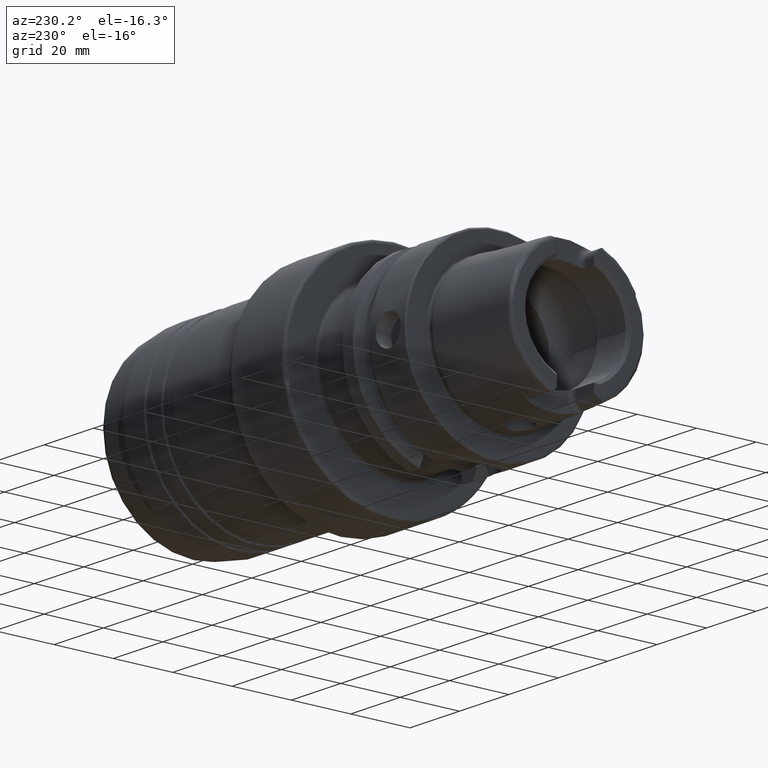
[diagram: clean part render]
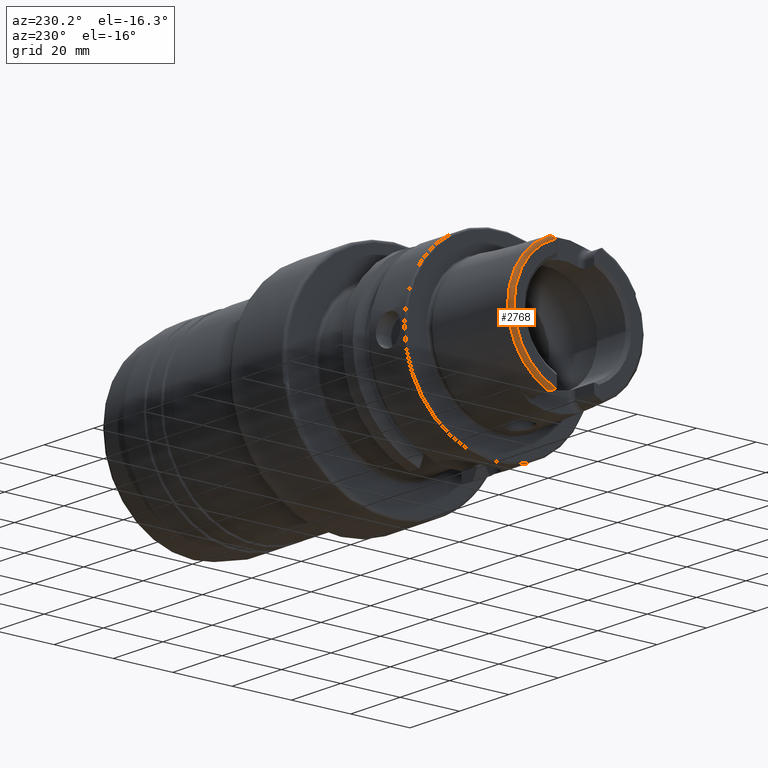
[diagram: same view with one face highlighted and labeled with its STEP entity id]
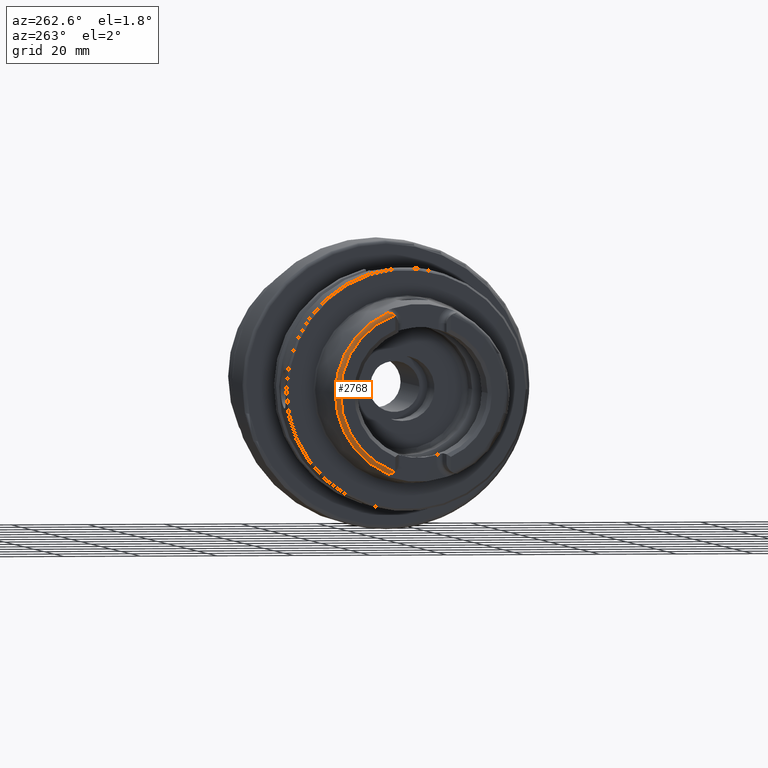
[diagram: same view with one face highlighted and labeled with its STEP entity id]
A machine part, auxiliary view. The second image highlights one B-rep face of the part: STEP entity #2768.
A second angle (auxiliary view) of the same face is appended — the face is thin or edge-on in the first view.
In plain terms, the highlighted toroidal blend (fillet) surface has major radius 21.576 mm and minor (blend) radius 1.2 mm.
Its self-contained STEP definition (entity closure, byte-faithful):
#94=B_SPLINE_CURVE_WITH_KNOTS('',3,(#4595,#4596,#4597,#4598,#4599,#4600,
#4601,#4602,#4603,#4604,#4605,#4606),.UNSPECIFIED.,.F.,.F.,(4,2,2,2,2,4),
(-0.439971245205478,-0.413787817992068,-0.386870723320619,-0.314205730694733,
-0.242063220501312,-0.191373987051965),.UNSPECIFIED.);
#99=B_SPLINE_CURVE_WITH_KNOTS('',3,(#4691,#4692,#4693,#4694,#4695,#4696,
#4697,#4698,#4699,#4700,#4701,#4702),.UNSPECIFIED.,.F.,.F.,(4,2,2,2,2,4),
(-0.196594494202377,-0.162015792380097,-0.0987584756003746,-0.0492121500493367,
-0.0201918504309682,-3.59409225210959E-5),.UNSPECIFIED.);
#578=FACE_OUTER_BOUND('',#727,.T.);
#727=EDGE_LOOP('',(#2477,#2478,#2479,#2480));
#883=CIRCLE('',#2995,22.7745368271334);
#949=CIRCLE('',#3128,21.5760400159857);
#1114=VERTEX_POINT('',#4592);
#1115=VERTEX_POINT('',#4594);
#1130=VERTEX_POINT('',#4681);
#1131=VERTEX_POINT('',#4690);
#1459=EDGE_CURVE('',#1115,#1114,#94,.T.);
#1479=EDGE_CURVE('',#1131,#1130,#99,.T.);
#1499=EDGE_CURVE('',#1115,#1130,#883,.T.);
#1684=EDGE_CURVE('',#1114,#1131,#949,.T.);
#2477=ORIENTED_EDGE('',*,*,#1479,.T.);
#2478=ORIENTED_EDGE('',*,*,#1499,.F.);
#2479=ORIENTED_EDGE('',*,*,#1459,.T.);
#2480=ORIENTED_EDGE('',*,*,#1684,.T.);
#2641=TOROIDAL_SURFACE('',#3127,21.5760400159857,1.2);
#2768=ADVANCED_FACE('',(#578),#2641,.T.);
#2995=AXIS2_PLACEMENT_3D('',#4941,#3608,#3609);
#3127=AXIS2_PLACEMENT_3D('',#5867,#3935,#3936);
#3128=AXIS2_PLACEMENT_3D('',#5868,#3937,#3938);
#3608=DIRECTION('center_axis',(1.,0.,0.));
#3609=DIRECTION('ref_axis',(0.,0.,-1.));
#3935=DIRECTION('center_axis',(1.,0.,0.));
#3936=DIRECTION('ref_axis',(0.,0.,-1.));
#3937=DIRECTION('center_axis',(1.,0.,0.));
#3938=DIRECTION('ref_axis',(0.,0.,-1.));
#4592=CARTESIAN_POINT('',(-32.,7.39118810947246,-20.2705658801576));
#4594=CARTESIAN_POINT('',(-30.8600449304182,9.1175788960984,-20.8698175067219));
#4595=CARTESIAN_POINT('Ctrl Pts',(-30.8600449304182,9.11757889609839,-20.8698175067219));
#4596=CARTESIAN_POINT('Ctrl Pts',(-30.9283482575805,9.10924589065498,-20.869723693404));
#4597=CARTESIAN_POINT('Ctrl Pts',(-30.993271833442,9.08711423752726,-20.869481166787));
#4598=CARTESIAN_POINT('Ctrl Pts',(-31.1175295394099,9.02410248673809,-20.8674243938042));
#4599=CARTESIAN_POINT('Ctrl Pts',(-31.1766323882079,8.98273168347476,-20.8654949507798));
#4600=CARTESIAN_POINT('Ctrl Pts',(-31.3771588963276,8.81568608992481,-20.853140478981));
#4601=CARTESIAN_POINT('Ctrl Pts',(-31.5206715121349,8.63879728066883,-20.8319176028095));
#4602=CARTESIAN_POINT('Ctrl Pts',(-31.7691415784724,8.23645855855542,-20.7290954164696));
#4603=CARTESIAN_POINT('Ctrl Pts',(-31.8687101576321,8.02133155327414,-20.6499424381211));
#4604=CARTESIAN_POINT('Ctrl Pts',(-31.9745830679216,7.66828298917771,-20.4650680358065));
#4605=CARTESIAN_POINT('Ctrl Pts',(-32.,7.52538170482901,-20.3740583042087));
#4606=CARTESIAN_POINT('Ctrl Pts',(-32.,7.39118810947247,-20.2705658801576));
#4681=CARTESIAN_POINT('',(-30.8600449304182,9.1175788960984,20.8698175067219));
#4690=CARTESIAN_POINT('',(-32.,7.39118810947246,20.2705658801576));
#4691=CARTESIAN_POINT('Ctrl Pts',(-32.,7.39118810947247,20.2705658801576));
#4692=CARTESIAN_POINT('Ctrl Pts',(-32.,7.5108721598535,20.3628682919178));
#4693=CARTESIAN_POINT('Ctrl Pts',(-31.9797330717779,7.63776168900947,20.4454948383081));
#4694=CARTESIAN_POINT('Ctrl Pts',(-31.8791506793963,8.00524977105305,20.646558514632));
#4695=CARTESIAN_POINT('Ctrl Pts',(-31.765597681806,8.24658605272637,20.7334672105939));
#4696=CARTESIAN_POINT('Ctrl Pts',(-31.5253369252513,8.62735746584638,20.8274140198604));
#4697=CARTESIAN_POINT('Ctrl Pts',(-31.4073954734027,8.77570244905025,20.847801807847));
#4698=CARTESIAN_POINT('Ctrl Pts',(-31.2163518404642,8.95387229883953,20.8640739602076));
#4699=CARTESIAN_POINT('Ctrl Pts',(-31.1366672867121,9.0150934584885,20.867161983441));
#4700=CARTESIAN_POINT('Ctrl Pts',(-30.990207154745,9.08815496121785,20.8694917701067));
#4701=CARTESIAN_POINT('Ctrl Pts',(-30.9267310903117,9.10944318505063,20.8697259145524));
#4702=CARTESIAN_POINT('Ctrl Pts',(-30.8600449304182,9.11757889609838,20.8698175067219));
#4941=CARTESIAN_POINT('Origin',(-30.8600449304182,0.,0.));
#5867=CARTESIAN_POINT('Origin',(-30.8,0.,0.));
#5868=CARTESIAN_POINT('Origin',(-32.,0.,0.));